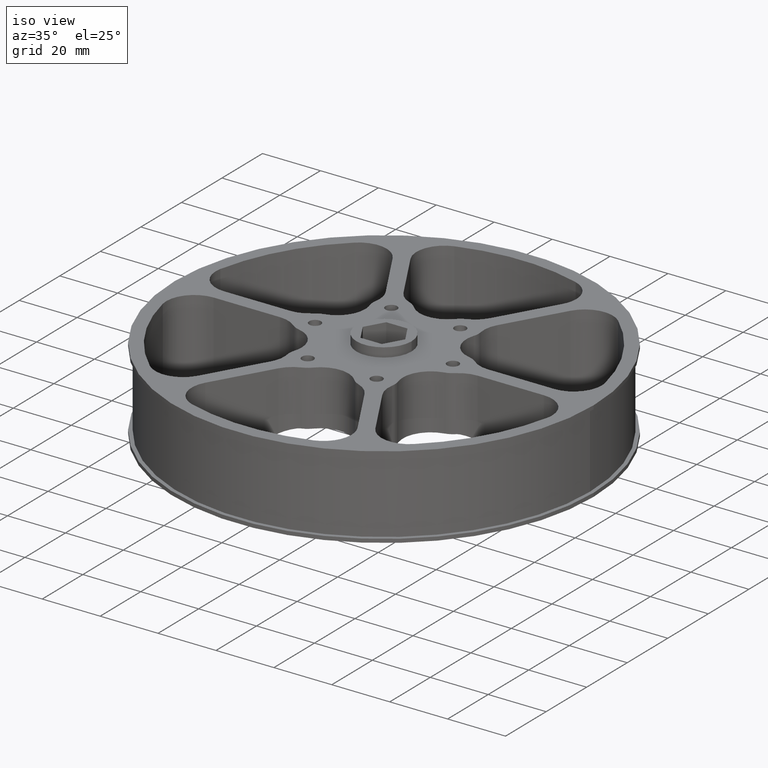
[diagram: clean part render]
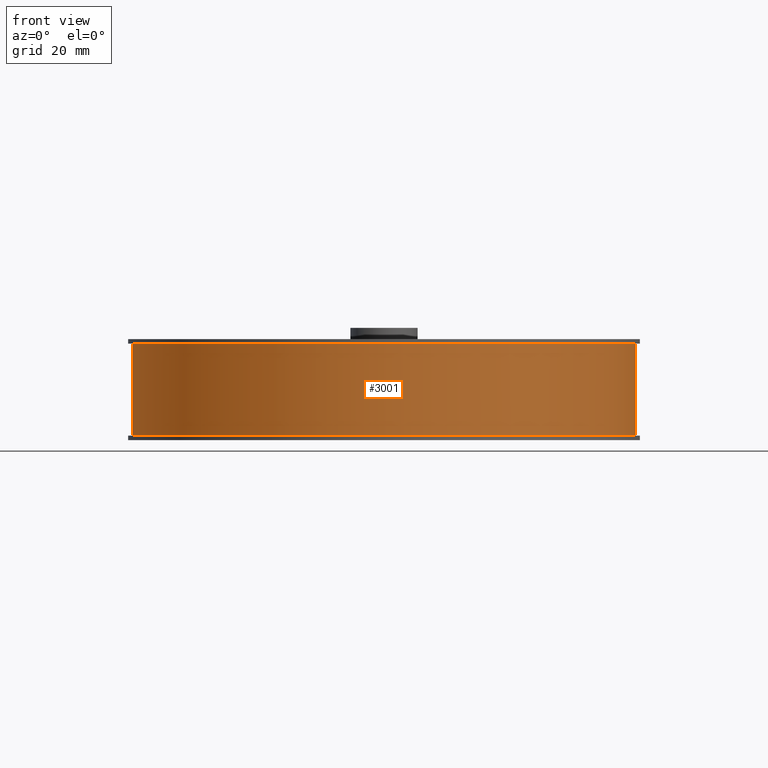
[diagram: tour spotlight — one face highlighted and labeled with its STEP entity id]
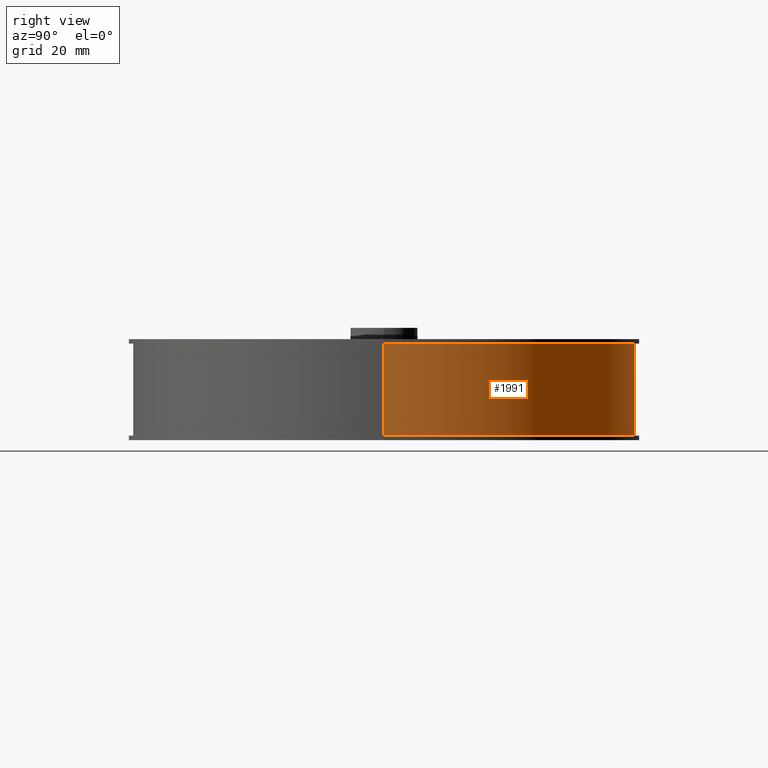
[diagram: tour spotlight — one face highlighted and labeled with its STEP entity id]
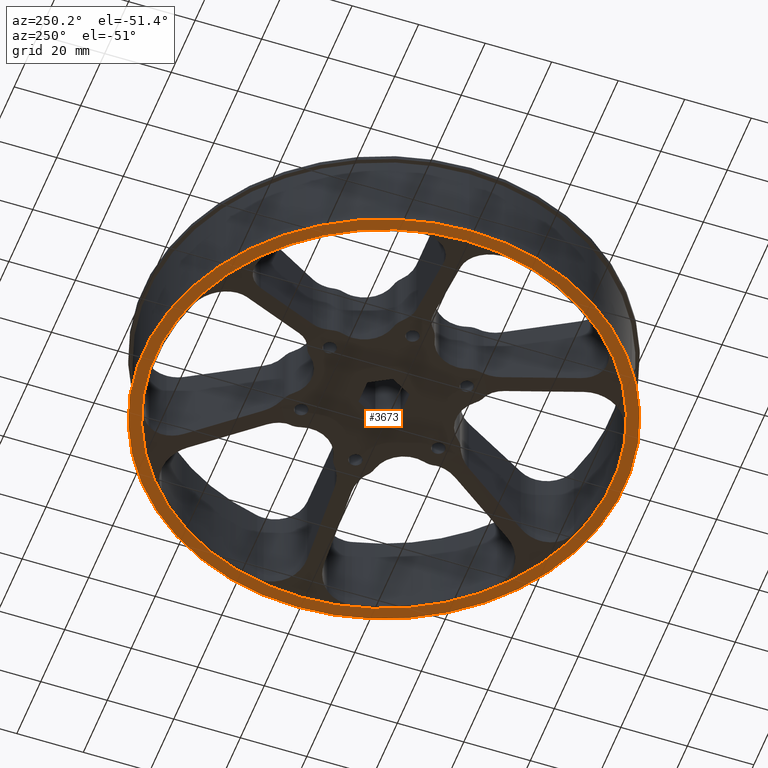
[diagram: tour spotlight — one face highlighted and labeled with its STEP entity id]
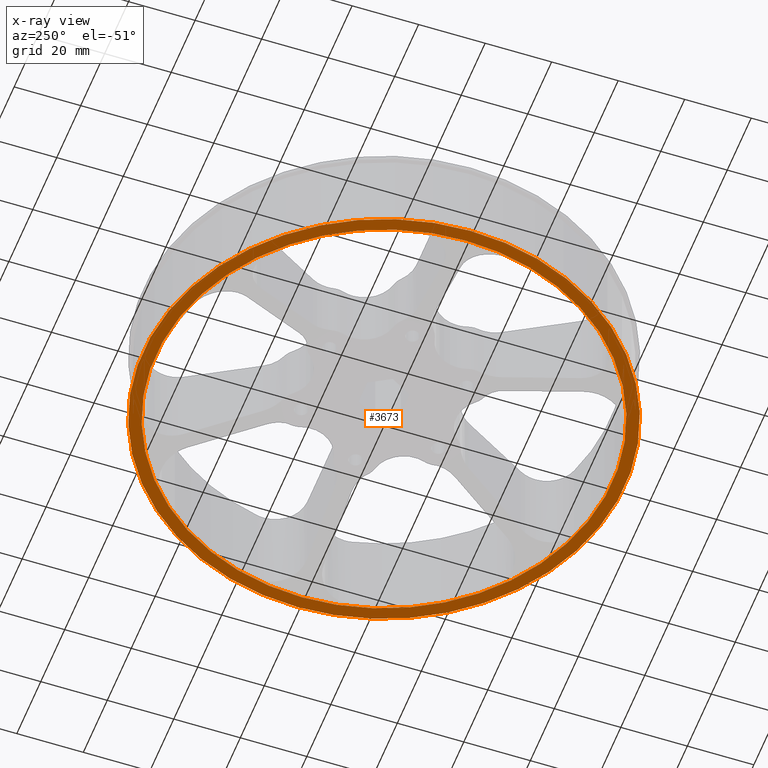
[diagram: x-ray of the same camera — body ghosted, this tour face saturated]
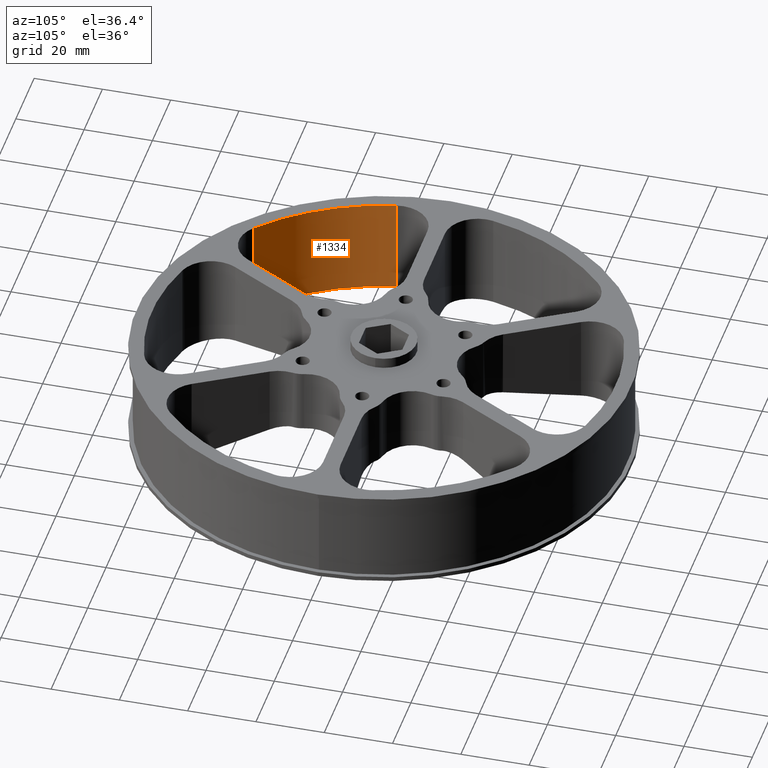
[diagram: tour spotlight — one face highlighted and labeled with its STEP entity id]
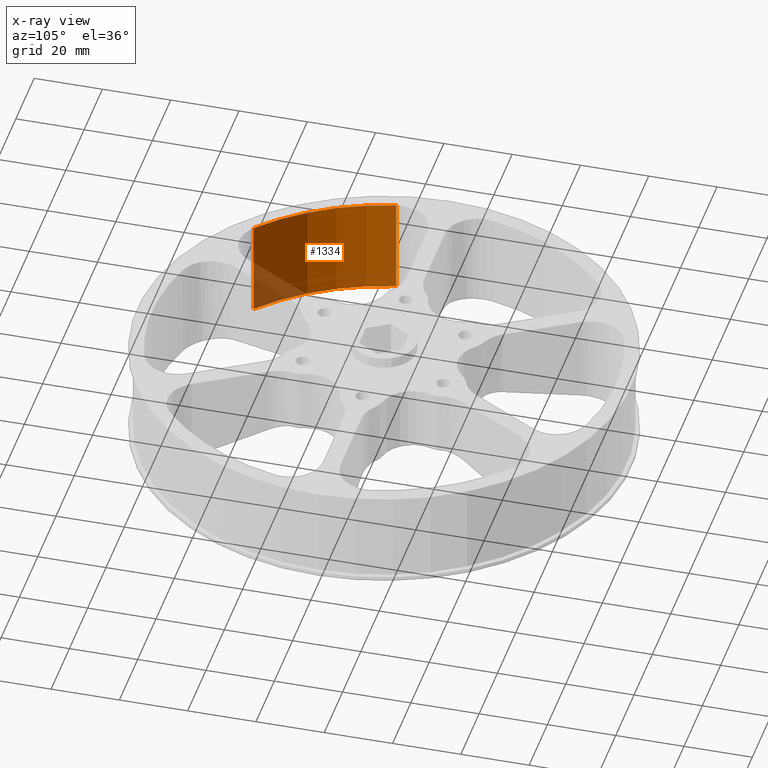
[diagram: x-ray of the same camera — body ghosted, this tour face saturated]
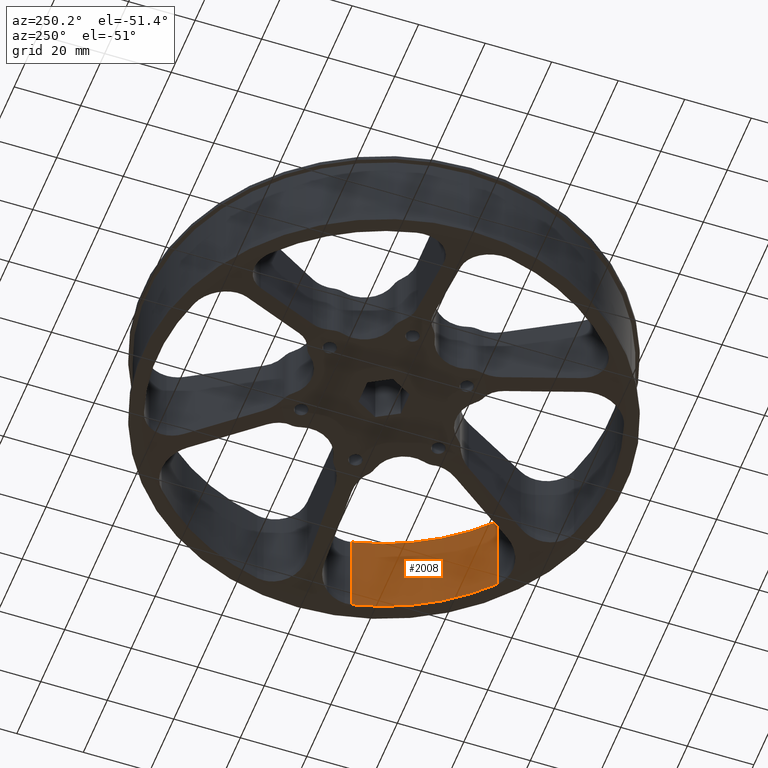
[diagram: tour spotlight — one face highlighted and labeled with its STEP entity id]
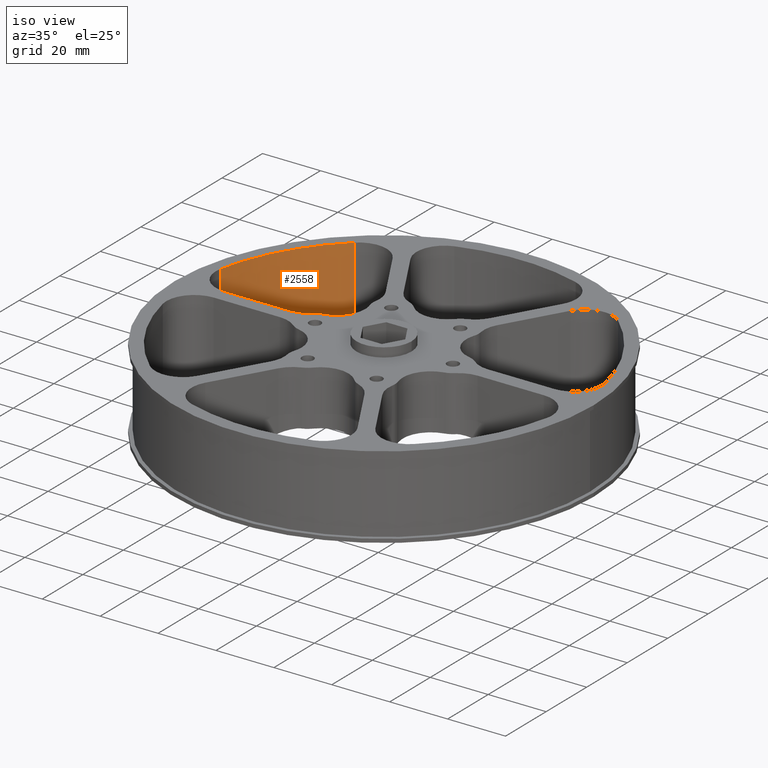
[diagram: tour spotlight — one face highlighted and labeled with its STEP entity id]
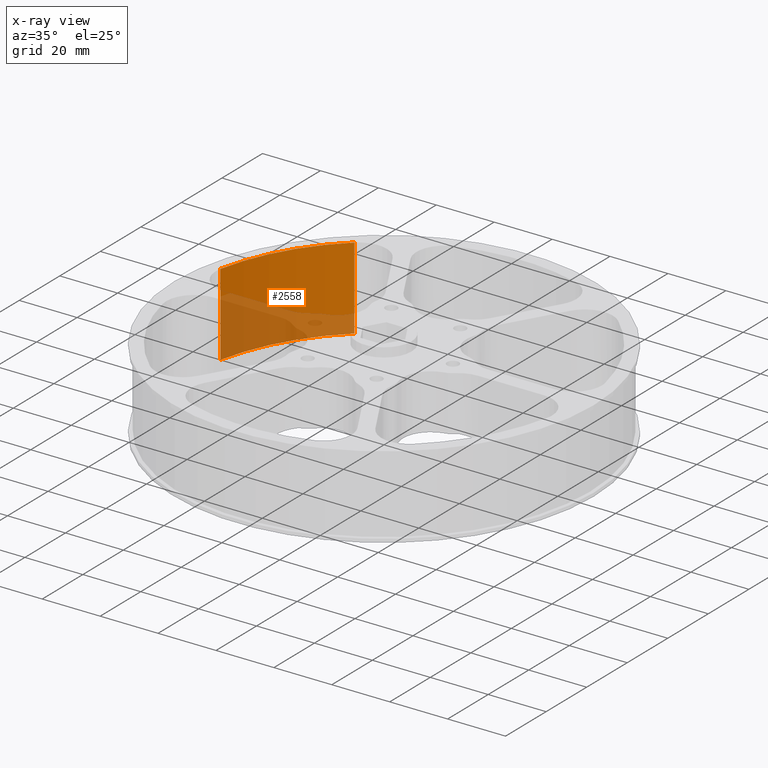
[diagram: x-ray of the same camera — body ghosted, this tour face saturated]
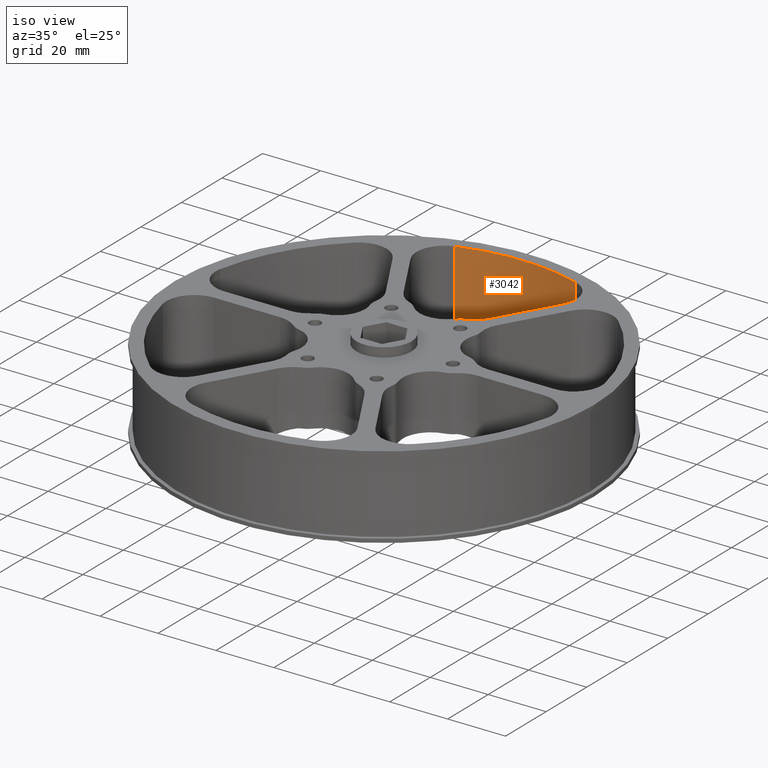
[diagram: tour spotlight — one face highlighted and labeled with its STEP entity id]
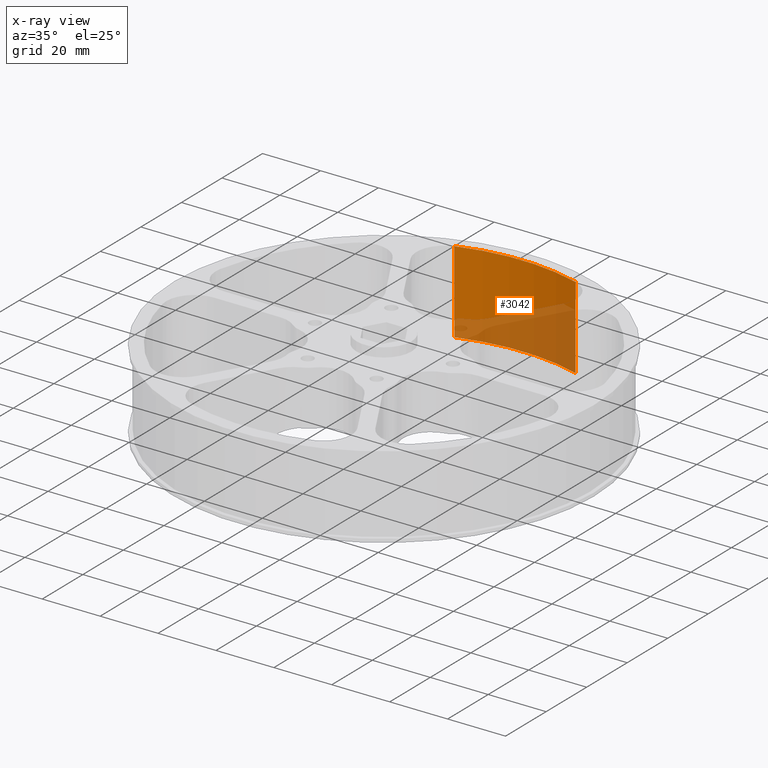
[diagram: x-ray of the same camera — body ghosted, this tour face saturated]
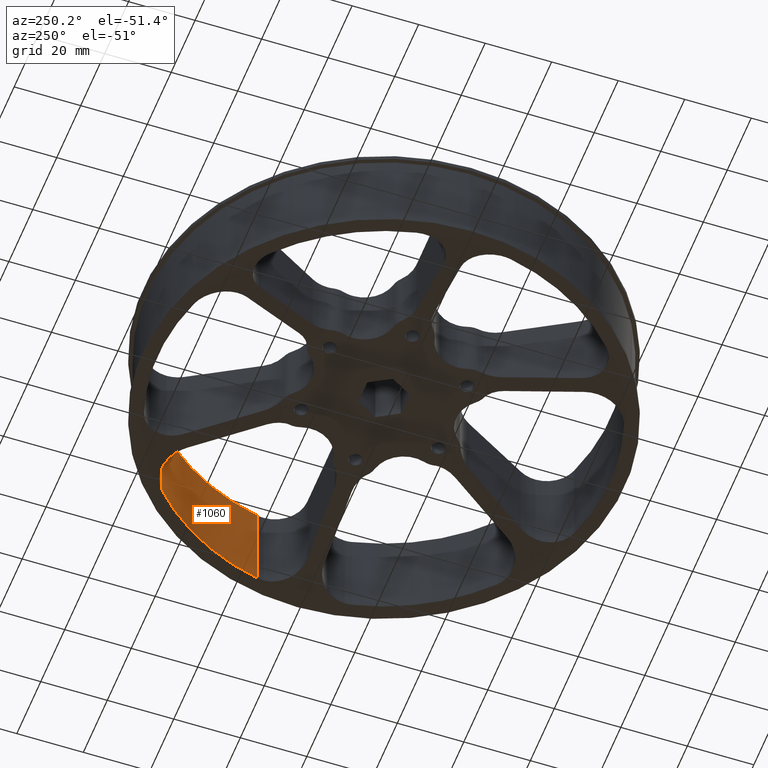
[diagram: tour spotlight — one face highlighted and labeled with its STEP entity id]
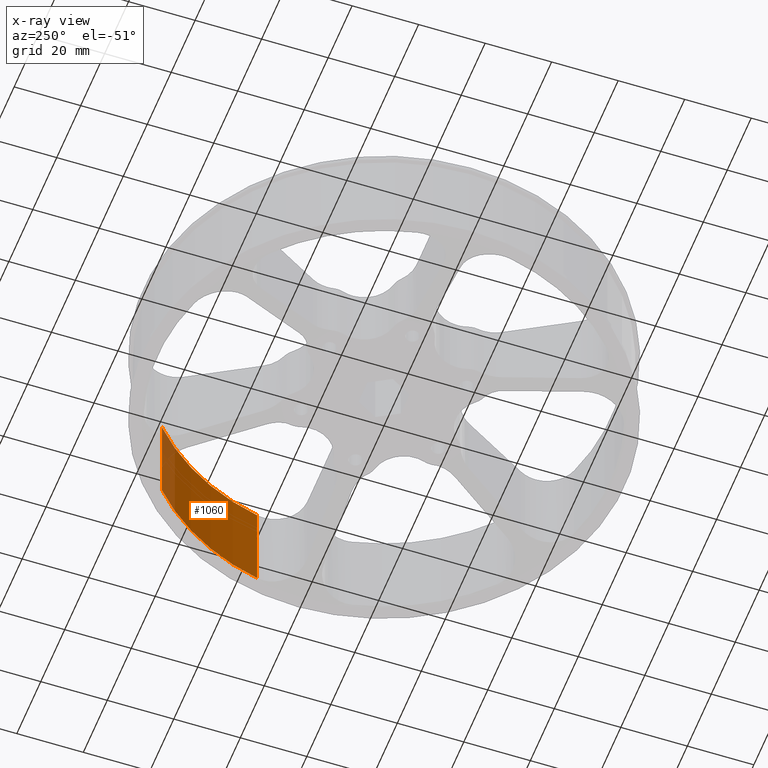
[diagram: x-ray of the same camera — body ghosted, this tour face saturated]
A machine part: a face-by-face anatomy tour. The part has 111 B-rep faces; the first image is the clean iso view, then the 8 largest visible faces are spotlighted one at a time (largest first), each with its STEP entity span.

Face 1 — front view, entity #3001. In plain terms, the highlighted cylindrical surface (partial cylindrical patch) has radius 71.12 mm, axis along (-0, -0, 1).
Definition (entity closure, byte-faithful):
#32 = CARTESIAN_POINT ( 'NONE',  ( -2.799999999999999822, 3.429011037612588783E-16, 1.074999999999999956 ) ) ;
#38 = DIRECTION ( 'NONE',  ( -0.0000000000000000000, -0.0000000000000000000, 1.000000000000000000 ) ) ;
#125 = CIRCLE ( 'NONE', #3105, 2.799999999999999822 ) ;
#397 = CARTESIAN_POINT ( 'NONE',  ( 0.0000000000000000000, 0.0000000000000000000, 0.05000000000000000278 ) ) ;
#498 = EDGE_CURVE ( 'NONE', #1722, #2497, #3160, .T. ) ;
#586 = FACE_OUTER_BOUND ( 'NONE', #1292, .T. ) ;
#608 = ORIENTED_EDGE ( 'NONE', *, *, #2325, .T. ) ;
#618 = VECTOR ( 'NONE', #893, 39.37007874015748143 ) ;
#890 = ORIENTED_EDGE ( 'NONE', *, *, #498, .F. ) ;
#893 = DIRECTION ( 'NONE',  ( -0.0000000000000000000, -0.0000000000000000000, 1.000000000000000000 ) ) ;
#976 = CARTESIAN_POINT ( 'NONE',  ( -2.799999999999999822, 3.429011037612588783E-16, 0.05000000000000000278 ) ) ;
#1200 = CARTESIAN_POINT ( 'NONE',  ( -2.799999999999999822, 3.429011037612588783E-16, 0.0000000000000000000 ) ) ;
#1277 = DIRECTION ( 'NONE',  ( -0.0000000000000000000, -0.0000000000000000000, 1.000000000000000000 ) ) ;
#1292 = EDGE_LOOP ( 'NONE', ( #890, #608, #3645, #2421 ) ) ;
#1348 = CYLINDRICAL_SURFACE ( 'NONE', #1515, 2.799999999999999822 ) ;
#1515 = AXIS2_PLACEMENT_3D ( 'NONE', #3851, #1808, #1844 ) ;
#1722 = VERTEX_POINT ( 'NONE', #976 ) ;
#1808 = DIRECTION ( 'NONE',  ( -0.0000000000000000000, -0.0000000000000000000, 1.000000000000000000 ) ) ;
#1844 = DIRECTION ( 'NONE',  ( 1.000000000000000000, 0.0000000000000000000, 0.0000000000000000000 ) ) ;
#2212 = CARTESIAN_POINT ( 'NONE',  ( 2.799999999999999822, 0.0000000000000000000, 0.05000000000000000278 ) ) ;
#2325 = EDGE_CURVE ( 'NONE', #1722, #3247, #125, .T. ) ;
#2343 = VECTOR ( 'NONE', #38, 39.37007874015748143 ) ;
#2378 = DIRECTION ( 'NONE',  ( -0.0000000000000000000, -0.0000000000000000000, 1.000000000000000000 ) ) ;
#2389 = EDGE_CURVE ( 'NONE', #2497, #3003, #3127, .T. ) ;
#2421 = ORIENTED_EDGE ( 'NONE', *, *, #2389, .F. ) ;
#2497 = VERTEX_POINT ( 'NONE', #32 ) ;
#2849 = CARTESIAN_POINT ( 'NONE',  ( 2.799999999999999822, 0.0000000000000000000, 1.074999999999999956 ) ) ;
#3001 = ADVANCED_FACE ( 'NONE', ( #586 ), #1348, .T. ) ;
#3003 = VERTEX_POINT ( 'NONE', #2849 ) ;
#3046 = DIRECTION ( 'NONE',  ( 1.000000000000000000, 0.0000000000000000000, 0.0000000000000000000 ) ) ;
#3105 = AXIS2_PLACEMENT_3D ( 'NONE', #397, #2378, #3046 ) ;
#3127 = CIRCLE ( 'NONE', #4020, 2.799999999999999822 ) ;
#3160 = LINE ( 'NONE', #1200, #618 ) ;
#3232 = LINE ( 'NONE', #3362, #2343 ) ;
#3247 = VERTEX_POINT ( 'NONE', #2212 ) ;
#3278 = DIRECTION ( 'NONE',  ( 1.000000000000000000, 0.0000000000000000000, 0.0000000000000000000 ) ) ;
#3362 = CARTESIAN_POINT ( 'NONE',  ( 2.799999999999999822, 0.0000000000000000000, 0.0000000000000000000 ) ) ;
#3574 = EDGE_CURVE ( 'NONE', #3247, #3003, #3232, .T. ) ;
#3621 = CARTESIAN_POINT ( 'NONE',  ( 0.0000000000000000000, 0.0000000000000000000, 1.074999999999999956 ) ) ;
#3645 = ORIENTED_EDGE ( 'NONE', *, *, #3574, .T. ) ;
#3851 = CARTESIAN_POINT ( 'NONE',  ( 0.0000000000000000000, 0.0000000000000000000, 0.0000000000000000000 ) ) ;
#4020 = AXIS2_PLACEMENT_3D ( 'NONE', #3621, #1277, #3278 ) ;

Face 2 — right view, entity #1991. In plain terms, the highlighted cylindrical surface (partial cylindrical patch) has radius 71.12 mm, axis along (-0, -0, 1).
Definition (entity closure, byte-faithful):
#32 = CARTESIAN_POINT ( 'NONE',  ( -2.799999999999999822, 3.429011037612588783E-16, 1.074999999999999956 ) ) ;
#38 = DIRECTION ( 'NONE',  ( -0.0000000000000000000, -0.0000000000000000000, 1.000000000000000000 ) ) ;
#232 = CIRCLE ( 'NONE', #2677, 2.799999999999999822 ) ;
#253 = DIRECTION ( 'NONE',  ( -0.0000000000000000000, -0.0000000000000000000, 1.000000000000000000 ) ) ;
#285 = FACE_OUTER_BOUND ( 'NONE', #353, .T. ) ;
#353 = EDGE_LOOP ( 'NONE', ( #4048, #2536, #1017, #4295 ) ) ;
#498 = EDGE_CURVE ( 'NONE', #1722, #2497, #3160, .T. ) ;
#618 = VECTOR ( 'NONE', #893, 39.37007874015748143 ) ;
#792 = CARTESIAN_POINT ( 'NONE',  ( 0.0000000000000000000, 0.0000000000000000000, 0.0000000000000000000 ) ) ;
#893 = DIRECTION ( 'NONE',  ( -0.0000000000000000000, -0.0000000000000000000, 1.000000000000000000 ) ) ;
#976 = CARTESIAN_POINT ( 'NONE',  ( -2.799999999999999822, 3.429011037612588783E-16, 0.05000000000000000278 ) ) ;
#1017 = ORIENTED_EDGE ( 'NONE', *, *, #2286, .F. ) ;
#1200 = CARTESIAN_POINT ( 'NONE',  ( -2.799999999999999822, 3.429011037612588783E-16, 0.0000000000000000000 ) ) ;
#1341 = DIRECTION ( 'NONE',  ( -0.0000000000000000000, -0.0000000000000000000, 1.000000000000000000 ) ) ;
#1722 = VERTEX_POINT ( 'NONE', #976 ) ;
#1806 = EDGE_CURVE ( 'NONE', #3247, #1722, #3567, .T. ) ;
#1914 = DIRECTION ( 'NONE',  ( 1.000000000000000000, 0.0000000000000000000, 0.0000000000000000000 ) ) ;
#1991 = ADVANCED_FACE ( 'NONE', ( #285 ), #2827, .T. ) ;
#2094 = DIRECTION ( 'NONE',  ( 1.000000000000000000, 0.0000000000000000000, 0.0000000000000000000 ) ) ;
#2212 = CARTESIAN_POINT ( 'NONE',  ( 2.799999999999999822, 0.0000000000000000000, 0.05000000000000000278 ) ) ;
#2286 = EDGE_CURVE ( 'NONE', #3003, #2497, #232, .T. ) ;
#2343 = VECTOR ( 'NONE', #38, 39.37007874015748143 ) ;
#2497 = VERTEX_POINT ( 'NONE', #32 ) ;
#2531 = AXIS2_PLACEMENT_3D ( 'NONE', #792, #2763, #2094 ) ;
#2536 = ORIENTED_EDGE ( 'NONE', *, *, #498, .T. ) ;
#2677 = AXIS2_PLACEMENT_3D ( 'NONE', #3926, #253, #1914 ) ;
#2763 = DIRECTION ( 'NONE',  ( -0.0000000000000000000, -0.0000000000000000000, 1.000000000000000000 ) ) ;
#2827 = CYLINDRICAL_SURFACE ( 'NONE', #2531, 2.799999999999999822 ) ;
#2849 = CARTESIAN_POINT ( 'NONE',  ( 2.799999999999999822, 0.0000000000000000000, 1.074999999999999956 ) ) ;
#3003 = VERTEX_POINT ( 'NONE', #2849 ) ;
#3160 = LINE ( 'NONE', #1200, #618 ) ;
#3232 = LINE ( 'NONE', #3362, #2343 ) ;
#3247 = VERTEX_POINT ( 'NONE', #2212 ) ;
#3285 = AXIS2_PLACEMENT_3D ( 'NONE', #3348, #1341, #3693 ) ;
#3348 = CARTESIAN_POINT ( 'NONE',  ( 0.0000000000000000000, 0.0000000000000000000, 0.05000000000000000278 ) ) ;
#3362 = CARTESIAN_POINT ( 'NONE',  ( 2.799999999999999822, 0.0000000000000000000, 0.0000000000000000000 ) ) ;
#3567 = CIRCLE ( 'NONE', #3285, 2.799999999999999822 ) ;
#3574 = EDGE_CURVE ( 'NONE', #3247, #3003, #3232, .T. ) ;
#3693 = DIRECTION ( 'NONE',  ( 1.000000000000000000, 0.0000000000000000000, 0.0000000000000000000 ) ) ;
#3926 = CARTESIAN_POINT ( 'NONE',  ( 0.0000000000000000000, 0.0000000000000000000, 1.074999999999999956 ) ) ;
#4048 = ORIENTED_EDGE ( 'NONE', *, *, #1806, .T. ) ;
#4295 = ORIENTED_EDGE ( 'NONE', *, *, #3574, .F. ) ;

Face 3 — auxiliary view, entity #3673. An x-ray twin of the same camera follows (body ghosted, this face saturated) — the face is partly hidden behind the body. In plain terms, the highlighted planar face has unit normal (0, 0, 1).
Definition (entity closure, byte-faithful):
#12 = CARTESIAN_POINT ( 'NONE',  ( 2.850000000000000533, 3.490243377569957540E-16, 0.0000000000000000000 ) ) ;
#78 = VERTEX_POINT ( 'NONE', #2067 ) ;
#296 = CIRCLE ( 'NONE', #3312, 2.700000000000000178 ) ;
#322 = EDGE_LOOP ( 'NONE', ( #2443, #3142 ) ) ;
#573 = PLANE ( 'NONE',  #4272 ) ;
#733 = CARTESIAN_POINT ( 'NONE',  ( 2.549591630525159028E-32, 0.0000000000000000000, 2.081899558550500773E-16 ) ) ;
#796 = EDGE_CURVE ( 'NONE', #2304, #78, #296, .T. ) ;
#837 = EDGE_LOOP ( 'NONE', ( #839, #3037 ) ) ;
#839 = ORIENTED_EDGE ( 'NONE', *, *, #3351, .F. ) ;
#1064 = DIRECTION ( 'NONE',  ( -1.000000000000000000, 0.0000000000000000000, 1.224646799147353454E-16 ) ) ;
#1225 = CARTESIAN_POINT ( 'NONE',  ( 0.0000000000000000000, 0.0000000000000000000, 0.0000000000000000000 ) ) ;
#1322 = DIRECTION ( 'NONE',  ( 1.000000000000000000, 0.0000000000000000000, -0.0000000000000000000 ) ) ;
#1406 = CARTESIAN_POINT ( 'NONE',  ( 2.549591630525159028E-32, 0.0000000000000000000, 2.081899558550500773E-16 ) ) ;
#1742 = DIRECTION ( 'NONE',  ( -1.000000000000000000, 0.0000000000000000000, 1.224646799147353454E-16 ) ) ;
#1817 = FACE_BOUND ( 'NONE', #322, .T. ) ;
#1842 = DIRECTION ( 'NONE',  ( 1.000000000000000000, 0.0000000000000000000, 0.0000000000000000000 ) ) ;
#1887 = EDGE_CURVE ( 'NONE', #78, #2304, #2356, .T. ) ;
#1953 = CARTESIAN_POINT ( 'NONE',  ( 0.0000000000000000000, 0.0000000000000000000, 0.0000000000000000000 ) ) ;
#1979 = CIRCLE ( 'NONE', #2961, 2.850000000000000533 ) ;
#2067 = CARTESIAN_POINT ( 'NONE',  ( 2.700000000000000622, 3.306546357697854719E-16, -6.499484351137624458E-17 ) ) ;
#2304 = VERTEX_POINT ( 'NONE', #2864 ) ;
#2305 = DIRECTION ( 'NONE',  ( 1.000000000000000000, 0.0000000000000000000, 0.0000000000000000000 ) ) ;
#2356 = CIRCLE ( 'NONE', #3740, 2.700000000000000178 ) ;
#2443 = ORIENTED_EDGE ( 'NONE', *, *, #796, .F. ) ;
#2654 = DIRECTION ( 'NONE',  ( 0.0000000000000000000, 0.0000000000000000000, 1.000000000000000000 ) ) ;
#2760 = EDGE_CURVE ( 'NONE', #3618, #3050, #1979, .T. ) ;
#2864 = CARTESIAN_POINT ( 'NONE',  ( -2.700000000000000622, 0.0000000000000000000, 5.496709550630829796E-16 ) ) ;
#2961 = AXIS2_PLACEMENT_3D ( 'NONE', #3849, #4151, #1842 ) ;
#3037 = ORIENTED_EDGE ( 'NONE', *, *, #2760, .F. ) ;
#3047 = DIRECTION ( 'NONE',  ( -1.224646799147353454E-16, -0.0000000000000000000, -1.000000000000000000 ) ) ;
#3050 = VERTEX_POINT ( 'NONE', #3623 ) ;
#3142 = ORIENTED_EDGE ( 'NONE', *, *, #1887, .F. ) ;
#3312 = AXIS2_PLACEMENT_3D ( 'NONE', #1406, #3755, #1742 ) ;
#3351 = EDGE_CURVE ( 'NONE', #3050, #3618, #3761, .T. ) ;
#3618 = VERTEX_POINT ( 'NONE', #12 ) ;
#3623 = CARTESIAN_POINT ( 'NONE',  ( -2.850000000000000533, 0.0000000000000000000, 0.0000000000000000000 ) ) ;
#3673 = ADVANCED_FACE ( 'NONE', ( #3814, #1817 ), #573, .F. ) ;
#3689 = AXIS2_PLACEMENT_3D ( 'NONE', #1953, #4304, #2305 ) ;
#3740 = AXIS2_PLACEMENT_3D ( 'NONE', #733, #3047, #1064 ) ;
#3755 = DIRECTION ( 'NONE',  ( -1.224646799147353454E-16, -0.0000000000000000000, -1.000000000000000000 ) ) ;
#3761 = CIRCLE ( 'NONE', #3689, 2.850000000000000533 ) ;
#3814 = FACE_OUTER_BOUND ( 'NONE', #837, .T. ) ;
#3849 = CARTESIAN_POINT ( 'NONE',  ( 0.0000000000000000000, 0.0000000000000000000, 0.0000000000000000000 ) ) ;
#4151 = DIRECTION ( 'NONE',  ( 0.0000000000000000000, 0.0000000000000000000, 1.000000000000000000 ) ) ;
#4272 = AXIS2_PLACEMENT_3D ( 'NONE', #1225, #2654, #1322 ) ;
#4304 = DIRECTION ( 'NONE',  ( 0.0000000000000000000, 0.0000000000000000000, 1.000000000000000000 ) ) ;

Face 4 — auxiliary view, entity #1334. An x-ray twin of the same camera follows (body ghosted, this face saturated) — the face is partly hidden behind the body. In plain terms, the highlighted cylindrical surface (partial cylindrical patch) has radius 67.945 mm, axis along (-0, -0, 1).
Definition (entity closure, byte-faithful):
#7 = EDGE_LOOP ( 'NONE', ( #670, #55, #2930, #3841 ) ) ;
#55 = ORIENTED_EDGE ( 'NONE', *, *, #1219, .T. ) ;
#143 = CARTESIAN_POINT ( 'NONE',  ( 7.359656244876505384E-19, 0.0000000000000000000, 0.006009615384615852457 ) ) ;
#263 = CARTESIAN_POINT ( 'NONE',  ( -1.792440584468755871, -1.985643913482300071, 0.0000000000000000000 ) ) ;
#358 = DIRECTION ( 'NONE',  ( 0.0000000000000000000, 0.0000000000000000000, 1.000000000000000000 ) ) ;
#670 = ORIENTED_EDGE ( 'NONE', *, *, #3954, .F. ) ;
#714 = CARTESIAN_POINT ( 'NONE',  ( -2.615838364180006259, -0.5594771241829868957, 0.0000000000000000000 ) ) ;
#766 = DIRECTION ( 'NONE',  ( -0.0000000000000000000, -0.0000000000000000000, 1.000000000000000000 ) ) ;
#849 = DIRECTION ( 'NONE',  ( -1.000000000000000000, 0.0000000000000000000, 1.224704050897968476E-16 ) ) ;
#1095 = CARTESIAN_POINT ( 'NONE',  ( 0.0000000000000000000, 0.0000000000000000000, 0.0000000000000000000 ) ) ;
#1114 = CARTESIAN_POINT ( 'NONE',  ( -1.792440584468755871, -1.985643913482300071, 1.125000000000000000 ) ) ;
#1167 = EDGE_CURVE ( 'NONE', #2589, #3887, #2895, .T. ) ;
#1219 = EDGE_CURVE ( 'NONE', #2756, #2589, #1899, .T. ) ;
#1334 = ADVANCED_FACE ( 'NONE', ( #1461 ), #2147, .F. ) ;
#1345 = AXIS2_PLACEMENT_3D ( 'NONE', #1095, #766, #3079 ) ;
#1442 = CIRCLE ( 'NONE', #3743, 2.674999999999999822 ) ;
#1461 = FACE_OUTER_BOUND ( 'NONE', #7, .T. ) ;
#1899 = LINE ( 'NONE', #714, #2782 ) ;
#2147 = CYLINDRICAL_SURFACE ( 'NONE', #1345, 2.674999999999999822 ) ;
#2345 = CARTESIAN_POINT ( 'NONE',  ( 0.0000000000000000000, 0.0000000000000000000, 1.125000000000000000 ) ) ;
#2358 = DIRECTION ( 'NONE',  ( -0.0000000000000000000, -0.0000000000000000000, 1.000000000000000000 ) ) ;
#2429 = CARTESIAN_POINT ( 'NONE',  ( -1.792440584468755871, -1.985643913482300071, 0.006009615384616071899 ) ) ;
#2589 = VERTEX_POINT ( 'NONE', #2783 ) ;
#2690 = DIRECTION ( 'NONE',  ( -1.000000000000000000, 0.0000000000000000000, 0.0000000000000000000 ) ) ;
#2756 = VERTEX_POINT ( 'NONE', #2835 ) ;
#2781 = AXIS2_PLACEMENT_3D ( 'NONE', #2345, #358, #2690 ) ;
#2782 = VECTOR ( 'NONE', #2358, 39.37007874015748143 ) ;
#2783 = CARTESIAN_POINT ( 'NONE',  ( -2.615838364180006259, -0.5594771241829868957, 1.125000000000000000 ) ) ;
#2835 = CARTESIAN_POINT ( 'NONE',  ( -2.615838364180006259, -0.5594771241829868957, 0.006009615384616172513 ) ) ;
#2895 = CIRCLE ( 'NONE', #2781, 2.674999999999999822 ) ;
#2930 = ORIENTED_EDGE ( 'NONE', *, *, #1167, .T. ) ;
#3079 = DIRECTION ( 'NONE',  ( 1.000000000000000000, 0.0000000000000000000, 0.0000000000000000000 ) ) ;
#3331 = VECTOR ( 'NONE', #4163, 39.37007874015748143 ) ;
#3611 = DIRECTION ( 'NONE',  ( 1.224646799147353454E-16, 0.0000000000000000000, 1.000000000000000000 ) ) ;
#3743 = AXIS2_PLACEMENT_3D ( 'NONE', #143, #3611, #849 ) ;
#3841 = ORIENTED_EDGE ( 'NONE', *, *, #3889, .T. ) ;
#3887 = VERTEX_POINT ( 'NONE', #1114 ) ;
#3889 = EDGE_CURVE ( 'NONE', #3887, #4063, #4226, .T. ) ;
#3954 = EDGE_CURVE ( 'NONE', #2756, #4063, #1442, .T. ) ;
#4063 = VERTEX_POINT ( 'NONE', #2429 ) ;
#4163 = DIRECTION ( 'NONE',  ( 0.0000000000000000000, 0.0000000000000000000, -1.000000000000000000 ) ) ;
#4226 = LINE ( 'NONE', #263, #3331 ) ;

Face 5 — auxiliary view, entity #2008. In plain terms, the highlighted cylindrical surface (partial cylindrical patch) has radius 67.945 mm, axis along (-0, -0, 1).
Definition (entity closure, byte-faithful):
#118 = EDGE_CURVE ( 'NONE', #4113, #2414, #2725, .T. ) ;
#180 = CARTESIAN_POINT ( 'NONE',  ( 1.792440584468726339, -1.985643913482326939, 1.125000000000000000 ) ) ;
#183 = EDGE_CURVE ( 'NONE', #4113, #413, #4186, .T. ) ;
#196 = CARTESIAN_POINT ( 'NONE',  ( 0.0000000000000000000, 0.0000000000000000000, 1.125000000000000000 ) ) ;
#413 = VERTEX_POINT ( 'NONE', #180 ) ;
#461 = CARTESIAN_POINT ( 'NONE',  ( 0.0000000000000000000, 0.0000000000000000000, 0.0000000000000000000 ) ) ;
#515 = DIRECTION ( 'NONE',  ( 0.4999999999999979461, -0.8660254037844398178, 0.0000000000000000000 ) ) ;
#606 = CARTESIAN_POINT ( 'NONE',  ( 1.792440584468726339, -1.985643913482326939, 0.006009615384615633014 ) ) ;
#624 = CARTESIAN_POINT ( 'NONE',  ( 2.615838364179998266, -0.5594771241830254205, 0.006009615384615532400 ) ) ;
#784 = CARTESIAN_POINT ( 'NONE',  ( 2.615838364179998266, -0.5594771241830254205, 1.125000000000000000 ) ) ;
#808 = DIRECTION ( 'NONE',  ( 1.000000000000000000, 0.0000000000000000000, 0.0000000000000000000 ) ) ;
#1025 = DIRECTION ( 'NONE',  ( -1.000000000000000000, -1.776356839400250465E-15, 1.224704050897968476E-16 ) ) ;
#1056 = FACE_OUTER_BOUND ( 'NONE', #3258, .T. ) ;
#1137 = AXIS2_PLACEMENT_3D ( 'NONE', #196, #2512, #515 ) ;
#1179 = DIRECTION ( 'NONE',  ( 0.0000000000000000000, 0.0000000000000000000, -1.000000000000000000 ) ) ;
#1370 = CARTESIAN_POINT ( 'NONE',  ( 1.792440584468726339, -1.985643913482326939, 0.0000000000000000000 ) ) ;
#1513 = VECTOR ( 'NONE', #1179, 39.37007874015748143 ) ;
#1519 = EDGE_CURVE ( 'NONE', #3064, #2414, #1729, .T. ) ;
#1649 = CARTESIAN_POINT ( 'NONE',  ( 7.359656244876505384E-19, 0.0000000000000000000, 0.006009615384615852457 ) ) ;
#1703 = DIRECTION ( 'NONE',  ( -0.0000000000000000000, -0.0000000000000000000, 1.000000000000000000 ) ) ;
#1729 = LINE ( 'NONE', #3168, #1513 ) ;
#1763 = CIRCLE ( 'NONE', #1137, 2.674999999999999822 ) ;
#1831 = CYLINDRICAL_SURFACE ( 'NONE', #2753, 2.674999999999999822 ) ;
#2008 = ADVANCED_FACE ( 'NONE', ( #1056 ), #1831, .F. ) ;
#2154 = ORIENTED_EDGE ( 'NONE', *, *, #183, .T. ) ;
#2174 = ORIENTED_EDGE ( 'NONE', *, *, #118, .F. ) ;
#2414 = VERTEX_POINT ( 'NONE', #624 ) ;
#2512 = DIRECTION ( 'NONE',  ( 0.0000000000000000000, 0.0000000000000000000, 1.000000000000000000 ) ) ;
#2667 = DIRECTION ( 'NONE',  ( 1.224646799147353454E-16, 0.0000000000000000000, 1.000000000000000000 ) ) ;
#2725 = CIRCLE ( 'NONE', #3698, 2.674999999999999822 ) ;
#2753 = AXIS2_PLACEMENT_3D ( 'NONE', #461, #2795, #808 ) ;
#2795 = DIRECTION ( 'NONE',  ( -0.0000000000000000000, -0.0000000000000000000, 1.000000000000000000 ) ) ;
#3064 = VERTEX_POINT ( 'NONE', #784 ) ;
#3168 = CARTESIAN_POINT ( 'NONE',  ( 2.615838364179998710, -0.5594771241830255315, 0.0000000000000000000 ) ) ;
#3258 = EDGE_LOOP ( 'NONE', ( #2174, #2154, #4000, #3845 ) ) ;
#3431 = EDGE_CURVE ( 'NONE', #413, #3064, #1763, .T. ) ;
#3698 = AXIS2_PLACEMENT_3D ( 'NONE', #1649, #2667, #1025 ) ;
#3772 = VECTOR ( 'NONE', #1703, 39.37007874015748143 ) ;
#3845 = ORIENTED_EDGE ( 'NONE', *, *, #1519, .T. ) ;
#4000 = ORIENTED_EDGE ( 'NONE', *, *, #3431, .T. ) ;
#4113 = VERTEX_POINT ( 'NONE', #606 ) ;
#4186 = LINE ( 'NONE', #1370, #3772 ) ;

Face 6 — iso view, entity #2558. An x-ray twin of the same camera follows (body ghosted, this face saturated) — the face is partly hidden behind the body. In plain terms, the highlighted cylindrical surface (partial cylindrical patch) has radius 67.945 mm, axis along (0, -0, 1).
Definition (entity closure, byte-faithful):
#75 = CARTESIAN_POINT ( 'NONE',  ( -2.615838364179994269, 0.5594771241830436281, 0.006009615384616172513 ) ) ;
#79 = CIRCLE ( 'NONE', #106, 2.674999999999999822 ) ;
#106 = AXIS2_PLACEMENT_3D ( 'NONE', #3111, #1126, #3461 ) ;
#121 = ORIENTED_EDGE ( 'NONE', *, *, #2254, .F. ) ;
#310 = DIRECTION ( 'NONE',  ( 1.224646799147353454E-16, 0.0000000000000000000, 1.000000000000000000 ) ) ;
#722 = ORIENTED_EDGE ( 'NONE', *, *, #1142, .T. ) ;
#847 = EDGE_CURVE ( 'NONE', #3980, #2368, #79, .T. ) ;
#908 = ORIENTED_EDGE ( 'NONE', *, *, #4001, .T. ) ;
#1126 = DIRECTION ( 'NONE',  ( 0.0000000000000000000, 0.0000000000000000000, 1.000000000000000000 ) ) ;
#1128 = CARTESIAN_POINT ( 'NONE',  ( -1.792440584468713016, 1.985643913482338929, 1.125000000000000000 ) ) ;
#1142 = EDGE_CURVE ( 'NONE', #2368, #1912, #2314, .T. ) ;
#1448 = CARTESIAN_POINT ( 'NONE',  ( -1.792440584468713016, 1.985643913482338929, 0.0000000000000000000 ) ) ;
#1827 = FACE_OUTER_BOUND ( 'NONE', #3703, .T. ) ;
#1912 = VERTEX_POINT ( 'NONE', #75 ) ;
#1993 = AXIS2_PLACEMENT_3D ( 'NONE', #2302, #310, #2638 ) ;
#2080 = CIRCLE ( 'NONE', #1993, 2.674999999999999822 ) ;
#2254 = EDGE_CURVE ( 'NONE', #2845, #1912, #2080, .T. ) ;
#2302 = CARTESIAN_POINT ( 'NONE',  ( 7.359656244876505384E-19, 0.0000000000000000000, 0.006009615384615852457 ) ) ;
#2314 = LINE ( 'NONE', #3000, #3677 ) ;
#2368 = VERTEX_POINT ( 'NONE', #2794 ) ;
#2379 = CARTESIAN_POINT ( 'NONE',  ( 0.0000000000000000000, 0.0000000000000000000, 0.0000000000000000000 ) ) ;
#2392 = DIRECTION ( 'NONE',  ( 1.000000000000000000, 0.0000000000000000000, 0.0000000000000000000 ) ) ;
#2558 = ADVANCED_FACE ( 'NONE', ( #1827 ), #4290, .F. ) ;
#2638 = DIRECTION ( 'NONE',  ( -1.000000000000000000, -4.440892098500626162E-15, 1.224704050897968476E-16 ) ) ;
#2675 = DIRECTION ( 'NONE',  ( -0.0000000000000000000, 0.0000000000000000000, -1.000000000000000000 ) ) ;
#2794 = CARTESIAN_POINT ( 'NONE',  ( -2.615838364179994269, 0.5594771241830436281, 1.125000000000000000 ) ) ;
#2845 = VERTEX_POINT ( 'NONE', #4097 ) ;
#3000 = CARTESIAN_POINT ( 'NONE',  ( -2.615838364179995157, 0.5594771241830438502, 0.0000000000000000000 ) ) ;
#3011 = VECTOR ( 'NONE', #3834, 39.37007874015748143 ) ;
#3066 = DIRECTION ( 'NONE',  ( 0.0000000000000000000, -0.0000000000000000000, 1.000000000000000000 ) ) ;
#3111 = CARTESIAN_POINT ( 'NONE',  ( 0.0000000000000000000, 0.0000000000000000000, 1.125000000000000000 ) ) ;
#3229 = LINE ( 'NONE', #1448, #3011 ) ;
#3461 = DIRECTION ( 'NONE',  ( -0.4999999999999919509, 0.8660254037844432595, 0.0000000000000000000 ) ) ;
#3677 = VECTOR ( 'NONE', #2675, 39.37007874015748143 ) ;
#3703 = EDGE_LOOP ( 'NONE', ( #121, #908, #4080, #722 ) ) ;
#3715 = AXIS2_PLACEMENT_3D ( 'NONE', #2379, #3066, #2392 ) ;
#3834 = DIRECTION ( 'NONE',  ( 0.0000000000000000000, -0.0000000000000000000, 1.000000000000000000 ) ) ;
#3980 = VERTEX_POINT ( 'NONE', #1128 ) ;
#4001 = EDGE_CURVE ( 'NONE', #2845, #3980, #3229, .T. ) ;
#4080 = ORIENTED_EDGE ( 'NONE', *, *, #847, .T. ) ;
#4097 = CARTESIAN_POINT ( 'NONE',  ( -1.792440584468713016, 1.985643913482338929, 0.006009615384616071899 ) ) ;
#4290 = CYLINDRICAL_SURFACE ( 'NONE', #3715, 2.674999999999999822 ) ;

Face 7 — iso view, entity #3042. An x-ray twin of the same camera follows (body ghosted, this face saturated) — the face is partly hidden behind the body. In plain terms, the highlighted cylindrical surface (partial cylindrical patch) has radius 67.945 mm, axis along (-0, -0, 1).
Definition (entity closure, byte-faithful):
#53 = AXIS2_PLACEMENT_3D ( 'NONE', #1594, #2062, #455 ) ;
#124 = DIRECTION ( 'NONE',  ( 0.0000000000000000000, 0.0000000000000000000, -1.000000000000000000 ) ) ;
#275 = CYLINDRICAL_SURFACE ( 'NONE', #2870, 2.674999999999999822 ) ;
#455 = DIRECTION ( 'NONE',  ( -1.000000000000000000, 1.776356839400250465E-15, 1.224704050897968476E-16 ) ) ;
#471 = FACE_OUTER_BOUND ( 'NONE', #1369, .T. ) ;
#684 = VERTEX_POINT ( 'NONE', #3013 ) ;
#844 = CARTESIAN_POINT ( 'NONE',  ( 0.8233977797113049002, 2.545121037665299735, 0.006009615384615751843 ) ) ;
#853 = CARTESIAN_POINT ( 'NONE',  ( 0.8233977797113052333, 2.545121037665300179, 0.0000000000000000000 ) ) ;
#956 = VECTOR ( 'NONE', #124, 39.37007874015748143 ) ;
#1070 = VERTEX_POINT ( 'NONE', #2660 ) ;
#1161 = CARTESIAN_POINT ( 'NONE',  ( 0.0000000000000000000, 0.0000000000000000000, 1.125000000000000000 ) ) ;
#1175 = DIRECTION ( 'NONE',  ( -0.0000000000000000000, -0.0000000000000000000, 1.000000000000000000 ) ) ;
#1369 = EDGE_LOOP ( 'NONE', ( #2920, #4053, #1416, #2138 ) ) ;
#1416 = ORIENTED_EDGE ( 'NONE', *, *, #2969, .T. ) ;
#1447 = VECTOR ( 'NONE', #1175, 39.37007874015748143 ) ;
#1594 = CARTESIAN_POINT ( 'NONE',  ( 7.359656244876505384E-19, 0.0000000000000000000, 0.006009615384615852457 ) ) ;
#1613 = DIRECTION ( 'NONE',  ( -0.0000000000000000000, -0.0000000000000000000, 1.000000000000000000 ) ) ;
#1973 = VERTEX_POINT ( 'NONE', #4098 ) ;
#2062 = DIRECTION ( 'NONE',  ( 1.224646799147353454E-16, 0.0000000000000000000, 1.000000000000000000 ) ) ;
#2138 = ORIENTED_EDGE ( 'NONE', *, *, #3153, .T. ) ;
#2660 = CARTESIAN_POINT ( 'NONE',  ( -0.8233977797112139729, 2.545121037665329489, 1.125000000000000000 ) ) ;
#2693 = VERTEX_POINT ( 'NONE', #844 ) ;
#2707 = CIRCLE ( 'NONE', #53, 2.674999999999999822 ) ;
#2717 = LINE ( 'NONE', #2774, #956 ) ;
#2774 = CARTESIAN_POINT ( 'NONE',  ( -0.8233977797112138619, 2.545121037665329489, 0.0000000000000000000 ) ) ;
#2857 = DIRECTION ( 'NONE',  ( 0.5000000000000101030, 0.8660254037844328234, 0.0000000000000000000 ) ) ;
#2870 = AXIS2_PLACEMENT_3D ( 'NONE', #3451, #1613, #3280 ) ;
#2920 = ORIENTED_EDGE ( 'NONE', *, *, #4088, .F. ) ;
#2969 = EDGE_CURVE ( 'NONE', #684, #1070, #3237, .T. ) ;
#2984 = EDGE_CURVE ( 'NONE', #2693, #684, #4127, .T. ) ;
#3013 = CARTESIAN_POINT ( 'NONE',  ( 0.8233977797113049002, 2.545121037665299735, 1.125000000000000000 ) ) ;
#3042 = ADVANCED_FACE ( 'NONE', ( #471 ), #275, .F. ) ;
#3153 = EDGE_CURVE ( 'NONE', #1070, #1973, #2717, .T. ) ;
#3237 = CIRCLE ( 'NONE', #3634, 2.674999999999999822 ) ;
#3280 = DIRECTION ( 'NONE',  ( 1.000000000000000000, 0.0000000000000000000, 0.0000000000000000000 ) ) ;
#3451 = CARTESIAN_POINT ( 'NONE',  ( 0.0000000000000000000, 0.0000000000000000000, 0.0000000000000000000 ) ) ;
#3490 = DIRECTION ( 'NONE',  ( 0.0000000000000000000, 0.0000000000000000000, 1.000000000000000000 ) ) ;
#3634 = AXIS2_PLACEMENT_3D ( 'NONE', #1161, #3490, #2857 ) ;
#4053 = ORIENTED_EDGE ( 'NONE', *, *, #2984, .T. ) ;
#4088 = EDGE_CURVE ( 'NONE', #2693, #1973, #2707, .T. ) ;
#4098 = CARTESIAN_POINT ( 'NONE',  ( -0.8233977797112139729, 2.545121037665329489, 0.006009615384615953071 ) ) ;
#4127 = LINE ( 'NONE', #853, #1447 ) ;

Face 8 — auxiliary view, entity #1060. An x-ray twin of the same camera follows (body ghosted, this face saturated) — the face is partly hidden behind the body. In plain terms, the highlighted cylindrical surface (partial cylindrical patch) has radius 67.945 mm, axis along (-0, -0, 1).
Definition (entity closure, byte-faithful):
#44 = CARTESIAN_POINT ( 'NONE',  ( 1.792440584468755871, 1.985643913482300071, 0.006009615384615633014 ) ) ;
#62 = ORIENTED_EDGE ( 'NONE', *, *, #2206, .F. ) ;
#178 = DIRECTION ( 'NONE',  ( 0.0000000000000000000, 0.0000000000000000000, 1.000000000000000000 ) ) ;
#312 = AXIS2_PLACEMENT_3D ( 'NONE', #3923, #178, #4268 ) ;
#323 = DIRECTION ( 'NONE',  ( 1.000000000000000000, 0.0000000000000000000, 0.0000000000000000000 ) ) ;
#424 = DIRECTION ( 'NONE',  ( -0.0000000000000000000, -0.0000000000000000000, 1.000000000000000000 ) ) ;
#561 = VERTEX_POINT ( 'NONE', #3896 ) ;
#595 = LINE ( 'NONE', #3390, #3937 ) ;
#712 = VERTEX_POINT ( 'NONE', #44 ) ;
#802 = DIRECTION ( 'NONE',  ( 0.0000000000000000000, 0.0000000000000000000, -1.000000000000000000 ) ) ;
#941 = ORIENTED_EDGE ( 'NONE', *, *, #3084, .T. ) ;
#1060 = ADVANCED_FACE ( 'NONE', ( #1518 ), #3888, .F. ) ;
#1150 = VECTOR ( 'NONE', #802, 39.37007874015748143 ) ;
#1254 = LINE ( 'NONE', #1474, #1150 ) ;
#1312 = CIRCLE ( 'NONE', #1547, 2.674999999999999822 ) ;
#1474 = CARTESIAN_POINT ( 'NONE',  ( 1.792440584468755871, 1.985643913482300071, 0.0000000000000000000 ) ) ;
#1518 = FACE_OUTER_BOUND ( 'NONE', #1965, .T. ) ;
#1547 = AXIS2_PLACEMENT_3D ( 'NONE', #3956, #1940, #4284 ) ;
#1940 = DIRECTION ( 'NONE',  ( 1.224646799147353454E-16, 0.0000000000000000000, 1.000000000000000000 ) ) ;
#1948 = EDGE_CURVE ( 'NONE', #2335, #2896, #595, .T. ) ;
#1965 = EDGE_LOOP ( 'NONE', ( #62, #2301, #2792, #941 ) ) ;
#2206 = EDGE_CURVE ( 'NONE', #2335, #712, #1312, .T. ) ;
#2239 = CIRCLE ( 'NONE', #312, 2.674999999999999822 ) ;
#2301 = ORIENTED_EDGE ( 'NONE', *, *, #1948, .T. ) ;
#2335 = VERTEX_POINT ( 'NONE', #2723 ) ;
#2646 = CARTESIAN_POINT ( 'NONE',  ( 0.0000000000000000000, 0.0000000000000000000, 0.0000000000000000000 ) ) ;
#2723 = CARTESIAN_POINT ( 'NONE',  ( 2.615838364180006259, 0.5594771241829868957, 0.006009615384615532400 ) ) ;
#2792 = ORIENTED_EDGE ( 'NONE', *, *, #3975, .T. ) ;
#2896 = VERTEX_POINT ( 'NONE', #3321 ) ;
#2979 = DIRECTION ( 'NONE',  ( -0.0000000000000000000, -0.0000000000000000000, 1.000000000000000000 ) ) ;
#3084 = EDGE_CURVE ( 'NONE', #561, #712, #1254, .T. ) ;
#3226 = AXIS2_PLACEMENT_3D ( 'NONE', #2646, #2979, #323 ) ;
#3321 = CARTESIAN_POINT ( 'NONE',  ( 2.615838364180006259, 0.5594771241829868957, 1.125000000000000000 ) ) ;
#3390 = CARTESIAN_POINT ( 'NONE',  ( 2.615838364180006259, 0.5594771241829868957, 0.0000000000000000000 ) ) ;
#3888 = CYLINDRICAL_SURFACE ( 'NONE', #3226, 2.674999999999999822 ) ;
#3896 = CARTESIAN_POINT ( 'NONE',  ( 1.792440584468755871, 1.985643913482300071, 1.125000000000000000 ) ) ;
#3923 = CARTESIAN_POINT ( 'NONE',  ( 0.0000000000000000000, 0.0000000000000000000, 1.125000000000000000 ) ) ;
#3937 = VECTOR ( 'NONE', #424, 39.37007874015748143 ) ;
#3956 = CARTESIAN_POINT ( 'NONE',  ( 7.359656244876505384E-19, 0.0000000000000000000, 0.006009615384615852457 ) ) ;
#3975 = EDGE_CURVE ( 'NONE', #2896, #561, #2239, .T. ) ;
#4268 = DIRECTION ( 'NONE',  ( 1.000000000000000000, 0.0000000000000000000, 0.0000000000000000000 ) ) ;
#4284 = DIRECTION ( 'NONE',  ( -1.000000000000000000, 0.0000000000000000000, 1.224704050897968476E-16 ) ) ;